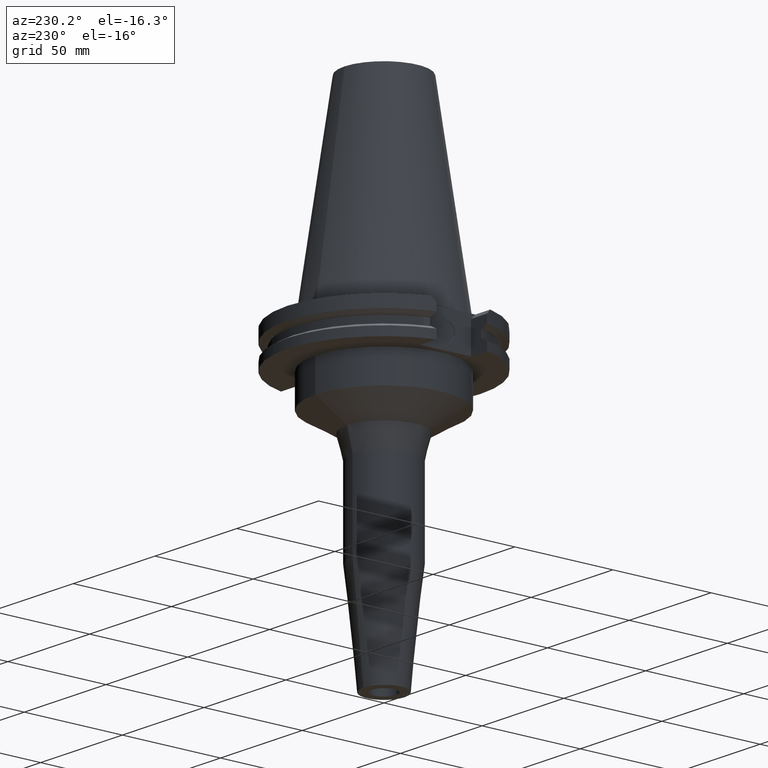
[diagram: clean part render]
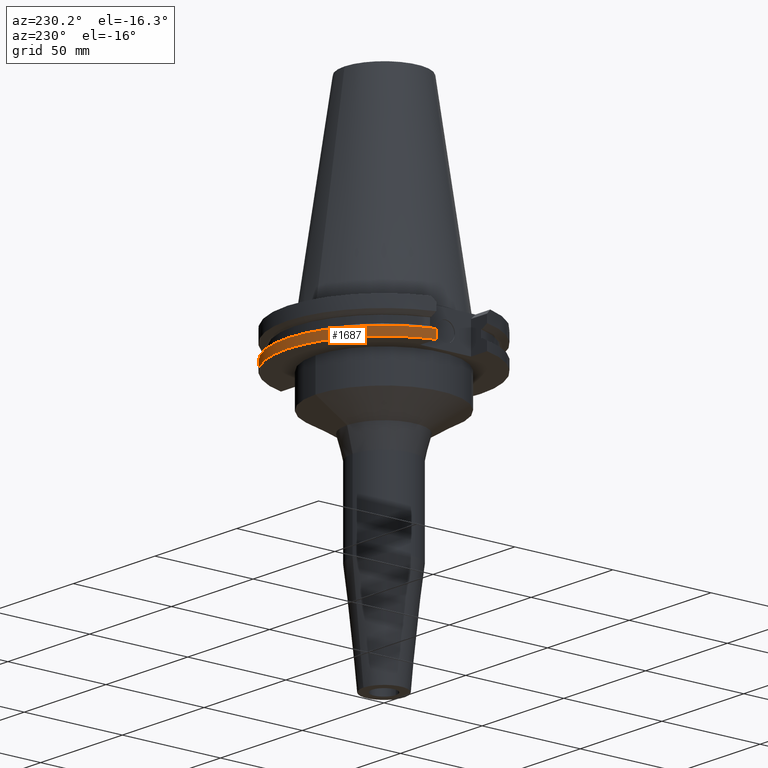
[diagram: same view with one face highlighted and labeled with its STEP entity id]
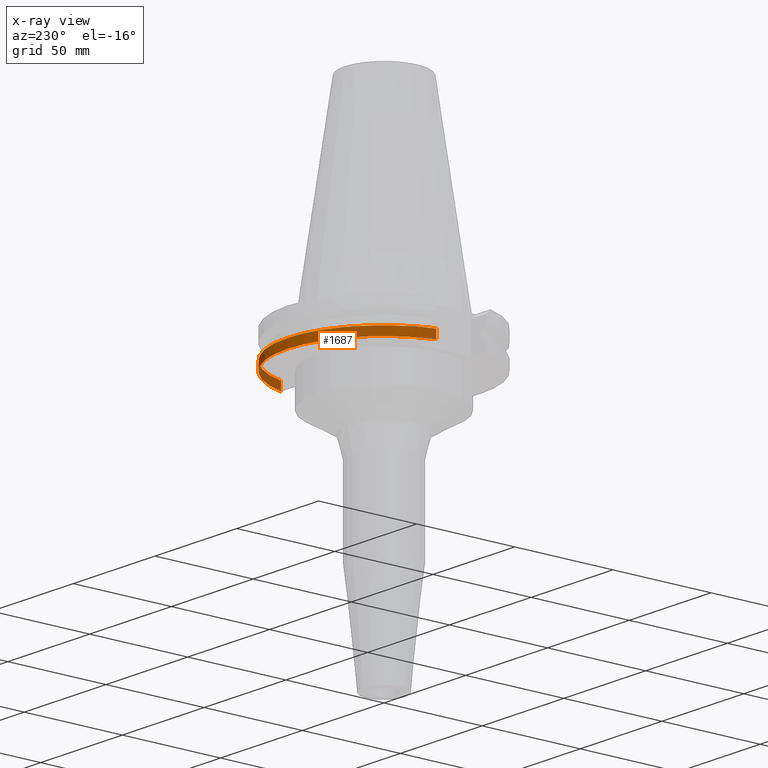
[diagram: x-ray of the same camera — body ghosted, the highlighted face saturated]
A machine part, auxiliary view. The second image highlights one B-rep face of the part: STEP entity #1687.
The next image is the same camera in x-ray: the body ghosted, the highlighted face saturated — about 0% of this face is hidden behind the body in this view.
In plain terms, the highlighted cylindrical surface (partial cylindrical patch) has radius 49.2125 mm, axis along (0, 0, -1).
Its self-contained STEP definition (entity closure, byte-faithful):
#212=CARTESIAN_POINT('',(0.E0,1.398301715266E-14,-1.905E1));
#213=DIRECTION('',(0.E0,0.E0,1.E0));
#214=DIRECTION('',(9.647287063661E-1,2.632461264923E-1,0.E0));
#215=AXIS2_PLACEMENT_3D('',#212,#213,#214);
#220=CARTESIAN_POINT('',(0.E0,1.398301715266E-14,-1.905E1));
#221=DIRECTION('',(0.E0,0.E0,1.E0));
#222=DIRECTION('',(0.E0,1.E0,0.E0));
#223=AXIS2_PLACEMENT_3D('',#220,#221,#222);
#383=DIRECTION('',(1.341459893288E-13,4.808244798230E-14,1.E0));
#384=VECTOR('',#383,4.396333230921E0);
#385=CARTESIAN_POINT('',(4.747671146204E1,1.2955E1,-1.905E1));
#386=LINE('',#385,#384);
#390=DIRECTION('',(1.212162554176E-13,-4.808244798230E-14,-1.E0));
#391=VECTOR('',#390,4.396333230921E0);
#392=CARTESIAN_POINT('',(-4.747671146204E1,1.2955E1,-1.465366676908E1));
#393=LINE('',#392,#391);
#417=CARTESIAN_POINT('',(0.E0,0.E0,-1.465366676908E1));
#418=DIRECTION('',(0.E0,0.E0,-1.E0));
#419=DIRECTION('',(-9.647287063661E-1,2.632461264923E-1,0.E0));
#420=AXIS2_PLACEMENT_3D('',#417,#418,#419);
#425=CARTESIAN_POINT('',(0.E0,0.E0,-1.465366676908E1));
#426=DIRECTION('',(0.E0,0.E0,-1.E0));
#427=DIRECTION('',(0.E0,1.E0,0.E0));
#428=AXIS2_PLACEMENT_3D('',#425,#426,#427);
#1264=CARTESIAN_POINT('',(4.747671146204E1,1.2955E1,-1.905E1));
#1265=VERTEX_POINT('',#1264);
#1266=CARTESIAN_POINT('',(0.E0,4.92125E1,-1.905E1));
#1267=CARTESIAN_POINT('',(-4.747671146204E1,1.2955E1,-1.905E1));
#1268=VERTEX_POINT('',#1266);
#1269=VERTEX_POINT('',#1267);
#1304=CARTESIAN_POINT('',(4.747671146204E1,1.2955E1,-1.465366676908E1));
#1305=VERTEX_POINT('',#1304);
#1306=CARTESIAN_POINT('',(-4.747671146204E1,1.2955E1,-1.465366676908E1));
#1307=CARTESIAN_POINT('',(0.E0,4.92125E1,-1.465366676908E1));
#1308=VERTEX_POINT('',#1306);
#1309=VERTEX_POINT('',#1307);
#1672=CARTESIAN_POINT('',(0.E0,1.398301715266E-14,1.1418E2));
#1673=DIRECTION('',(0.E0,0.E0,-1.E0));
#1674=DIRECTION('',(0.E0,-1.E0,0.E0));
#1675=AXIS2_PLACEMENT_3D('',#1672,#1673,#1674);
#1676=CYLINDRICAL_SURFACE('',#1675,4.92125E1);
#1677=ORIENTED_EDGE('',*,*,#1573,.T.);
#1679=ORIENTED_EDGE('',*,*,#1678,.F.);
#1681=ORIENTED_EDGE('',*,*,#1680,.F.);
#1682=ORIENTED_EDGE('',*,*,#1654,.T.);
#1683=ORIENTED_EDGE('',*,*,#1529,.F.);
#1684=ORIENTED_EDGE('',*,*,#1527,.F.);
#1685=EDGE_LOOP('',(#1677,#1679,#1681,#1682,#1683,#1684));
#1686=FACE_OUTER_BOUND('',#1685,.F.);
#216=CIRCLE('',#215,4.92125E1);
#224=CIRCLE('',#223,4.92125E1);
#421=CIRCLE('',#420,4.92125E1);
#429=CIRCLE('',#428,4.92125E1);
#1527=EDGE_CURVE('',#1265,#1268,#216,.T.);
#1529=EDGE_CURVE('',#1268,#1269,#224,.T.);
#1573=EDGE_CURVE('',#1265,#1305,#386,.T.);
#1654=EDGE_CURVE('',#1308,#1269,#393,.T.);
#1678=EDGE_CURVE('',#1309,#1305,#429,.T.);
#1680=EDGE_CURVE('',#1308,#1309,#421,.T.);
#1687=ADVANCED_FACE('',(#1686),#1676,.T.);